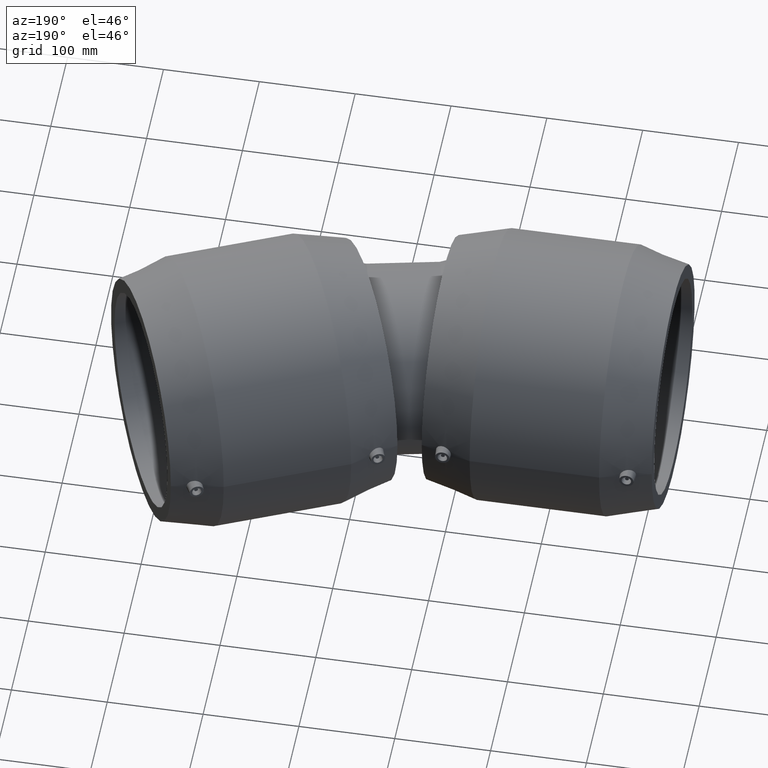
[diagram: clean part render]
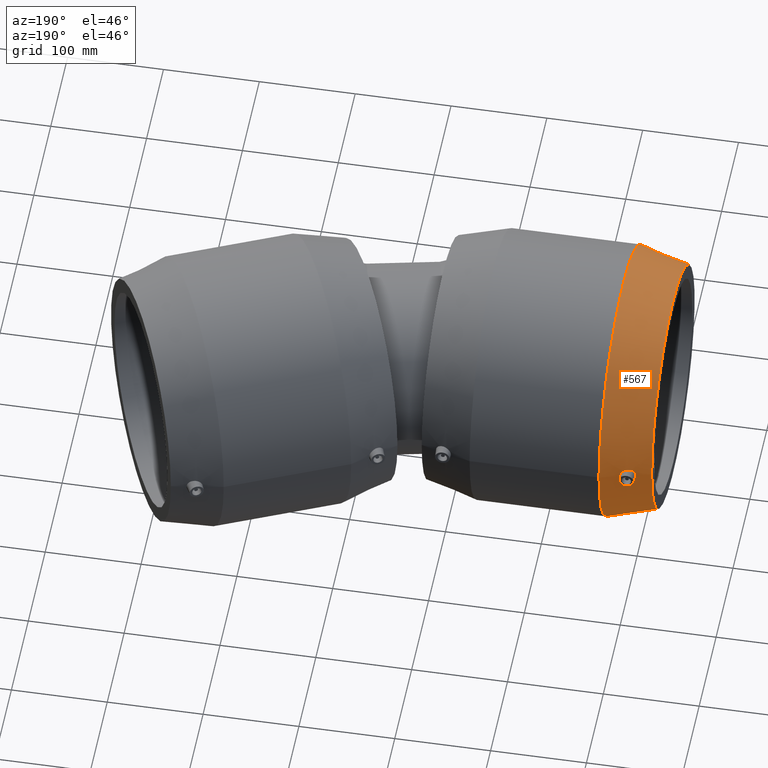
[diagram: same view with one face highlighted and labeled with its STEP entity id]
A machine part, auxiliary view. The second image highlights one B-rep face of the part: STEP entity #567.
In plain terms, the highlighted conical surface has half-angle 15.033 deg.
Its self-contained STEP definition (entity closure, byte-faithful):
#19=CONICAL_SURFACE('',#646,133.95,15.0332581293883);
#88=FACE_BOUND('',#215,.T.);
#89=FACE_BOUND('',#216,.T.);
#139=FACE_OUTER_BOUND('',#214,.T.);
#214=EDGE_LOOP('',(#487));
#215=EDGE_LOOP('',(#488));
#216=EDGE_LOOP('',(#489));
#268=B_SPLINE_CURVE_WITH_KNOTS('',3,(#1189,#1190,#1191,#1192,#1193,#1194,
#1195,#1196,#1197,#1198,#1199,#1200,#1201,#1202,#1203,#1204,#1205,#1206,
#1207,#1208,#1209,#1210,#1211,#1212,#1213,#1214,#1215,#1216,#1217,#1218,
#1219,#1220,#1221,#1222),.UNSPECIFIED.,.T.,.F.,(4,2,2,2,2,2,2,2,2,2,2,2,
2,2,2,2,4),(0.,0.31254054543288,0.62508109086576,0.931095676491266,1.23711026211677,
1.54312484774228,1.84913943336778,2.16167997880066,2.47422052423354,2.7985535358481,
3.12288654746265,3.43539417965335,3.74790181184406,4.06040944403477,4.37291707622547,
4.69725008784002,5.02158309945458),.UNSPECIFIED.);
#290=CIRCLE('',#630,141.);
#297=CIRCLE('',#645,126.9);
#339=VERTEX_POINT('',#1188);
#341=VERTEX_POINT('',#1226);
#348=VERTEX_POINT('',#1248);
#394=EDGE_CURVE('',#339,#339,#268,.T.);
#396=EDGE_CURVE('',#341,#341,#290,.T.);
#403=EDGE_CURVE('',#348,#348,#297,.T.);
#487=ORIENTED_EDGE('',*,*,#396,.F.);
#488=ORIENTED_EDGE('',*,*,#394,.T.);
#489=ORIENTED_EDGE('',*,*,#403,.T.);
#567=ADVANCED_FACE('',(#139,#88,#89),#19,.T.);
#630=AXIS2_PLACEMENT_3D('',#1227,#767,#768);
#645=AXIS2_PLACEMENT_3D('',#1249,#797,#798);
#646=AXIS2_PLACEMENT_3D('',#1250,#799,#800);
#767=DIRECTION('center_axis',(1.,1.83697019872103E-16,0.));
#768=DIRECTION('ref_axis',(0.,0.,-1.));
#797=DIRECTION('center_axis',(1.,1.83697019872103E-16,0.));
#798=DIRECTION('ref_axis',(0.,0.,-1.));
#799=DIRECTION('center_axis',(1.,1.83697019872103E-16,0.));
#800=DIRECTION('ref_axis',(-2.00304495873311E-16,1.,0.));
#1188=CARTESIAN_POINT('',(-96.3275786518821,133.005643115485,8.19286936313481));
#1189=CARTESIAN_POINT('Ctrl Pts',(-96.327578651882,133.005643115485,8.19286936313481));
#1190=CARTESIAN_POINT('Ctrl Pts',(-97.333725249144,132.735932084643,8.17625572788049));
#1191=CARTESIAN_POINT('Ctrl Pts',(-98.4105002482221,132.45995907812,7.96072062464416));
#1192=CARTESIAN_POINT('Ctrl Pts',(-100.397793771168,131.973869457011,7.10958920398564));
#1193=CARTESIAN_POINT('Ctrl Pts',(-101.308043490343,131.763199860066,6.47368121196486));
#1194=CARTESIAN_POINT('Ctrl Pts',(-102.732592671187,131.443725079467,5.01772011361722));
#1195=CARTESIAN_POINT('Ctrl Pts',(-103.347599254674,131.311957655985,4.10618057598267));
#1196=CARTESIAN_POINT('Ctrl Pts',(-104.164478546386,131.13982814466,2.10733707458505));
#1197=CARTESIAN_POINT('Ctrl Pts',(-104.366244500847,131.098780048344,1.02004861875169));
#1198=CARTESIAN_POINT('Ctrl Pts',(-104.366244500847,131.098780048344,-1.02004861875169));
#1199=CARTESIAN_POINT('Ctrl Pts',(-104.164478546386,131.13982814466,-2.10733707458505));
#1200=CARTESIAN_POINT('Ctrl Pts',(-103.347599254674,131.311957655985,-4.10618057598268));
#1201=CARTESIAN_POINT('Ctrl Pts',(-102.732592671187,131.443725079467,-5.01772011361723));
#1202=CARTESIAN_POINT('Ctrl Pts',(-101.308043490343,131.763199860066,-6.47368121196486));
#1203=CARTESIAN_POINT('Ctrl Pts',(-100.397793771168,131.973869457011,-7.10958920398562));
#1204=CARTESIAN_POINT('Ctrl Pts',(-98.4105002482221,132.45995907812,-7.96072062464416));
#1205=CARTESIAN_POINT('Ctrl Pts',(-97.333725249144,132.735932084643,-8.17625572788049));
#1206=CARTESIAN_POINT('Ctrl Pts',(-95.2834691410222,133.28553061225,-8.21010984740042));
#1207=CARTESIAN_POINT('Ctrl Pts',(-94.1688383657931,133.597928440996,-8.01617772400986));
#1208=CARTESIAN_POINT('Ctrl Pts',(-92.1121775273784,134.198285370383,-7.18637332201255));
#1209=CARTESIAN_POINT('Ctrl Pts',(-91.1699698004753,134.485606281078,-6.55047978788964));
#1210=CARTESIAN_POINT('Ctrl Pts',(-89.7031941089152,134.943018051387,-5.08568202226873));
#1211=CARTESIAN_POINT('Ctrl Pts',(-89.0711954480845,135.146087940566,-4.16961193341815));
#1212=CARTESIAN_POINT('Ctrl Pts',(-88.2283743076232,135.419715311182,-2.14774144502104));
#1213=CARTESIAN_POINT('Ctrl Pts',(-88.0178920076817,135.489480432223,-1.04169210730236));
#1214=CARTESIAN_POINT('Ctrl Pts',(-88.0178920076817,135.489480432223,1.04169210730235));
#1215=CARTESIAN_POINT('Ctrl Pts',(-88.2283743076232,135.419715311182,2.14774144502104));
#1216=CARTESIAN_POINT('Ctrl Pts',(-89.0711954480845,135.146087940566,4.16961193341815));
#1217=CARTESIAN_POINT('Ctrl Pts',(-89.7031941089152,134.943018051387,5.08568202226872));
#1218=CARTESIAN_POINT('Ctrl Pts',(-91.1699698004753,134.485606281078,6.55047978788964));
#1219=CARTESIAN_POINT('Ctrl Pts',(-92.1121775273784,134.198285370383,7.18637332201255));
#1220=CARTESIAN_POINT('Ctrl Pts',(-94.1688383657931,133.597928440996,8.01617772400986));
#1221=CARTESIAN_POINT('Ctrl Pts',(-95.2834691410222,133.28553061225,8.21010984740042));
#1222=CARTESIAN_POINT('Ctrl Pts',(-96.327578651882,133.005643115485,8.19286936313482));
#1226=CARTESIAN_POINT('',(-67.5,141.,0.));
#1227=CARTESIAN_POINT('Origin',(-67.5,9.64409354328541E-15,0.));
#1248=CARTESIAN_POINT('',(-120.,126.9,0.));
#1249=CARTESIAN_POINT('Origin',(-120.,2.46519032881566E-30,0.));
#1250=CARTESIAN_POINT('Origin',(-93.75,4.82204677164271E-15,0.));